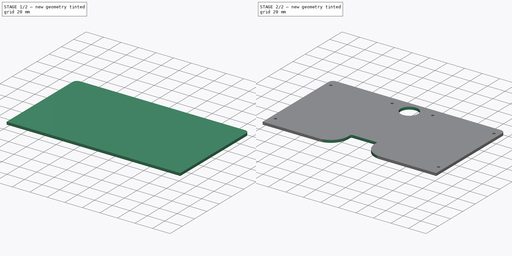
[diagram: build sequence overview — one tinted view per stage of 2, left to right]
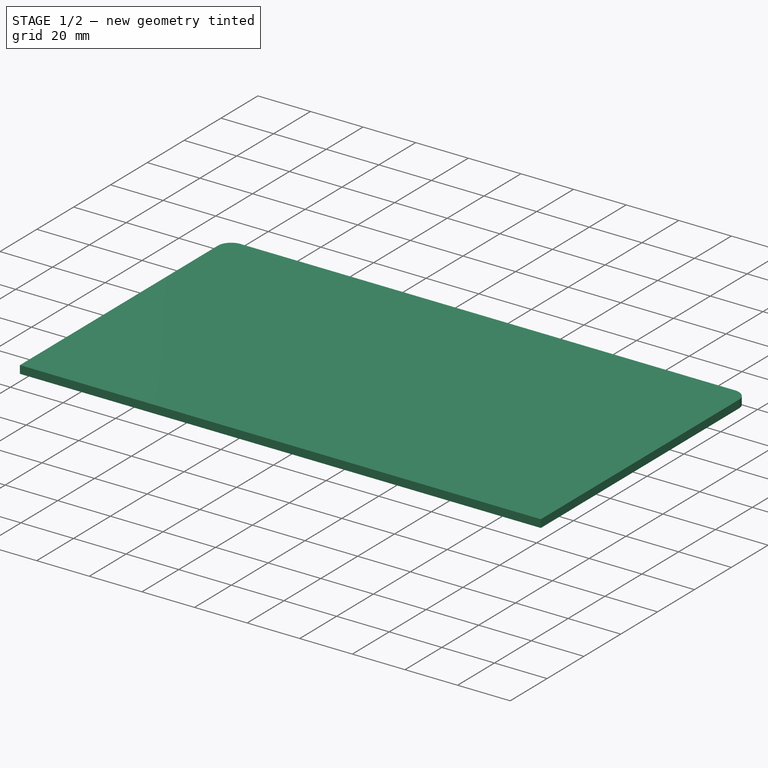
[diagram: stage 1 of 2 — iso view after this stage's code; geometry added in this stage tinted green]
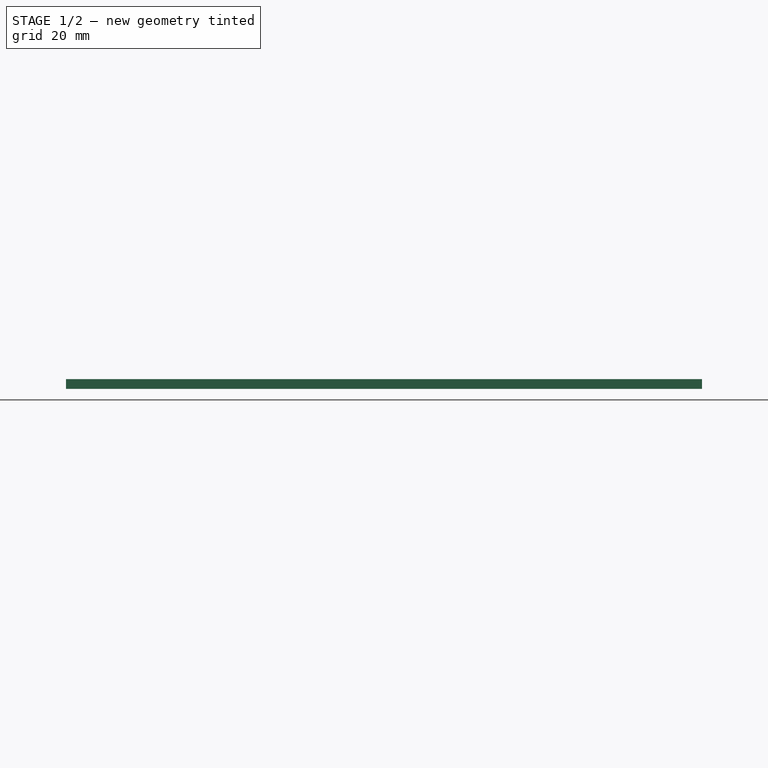
[diagram: stage 1 of 2 — front view after this stage's code; geometry added in this stage tinted green]
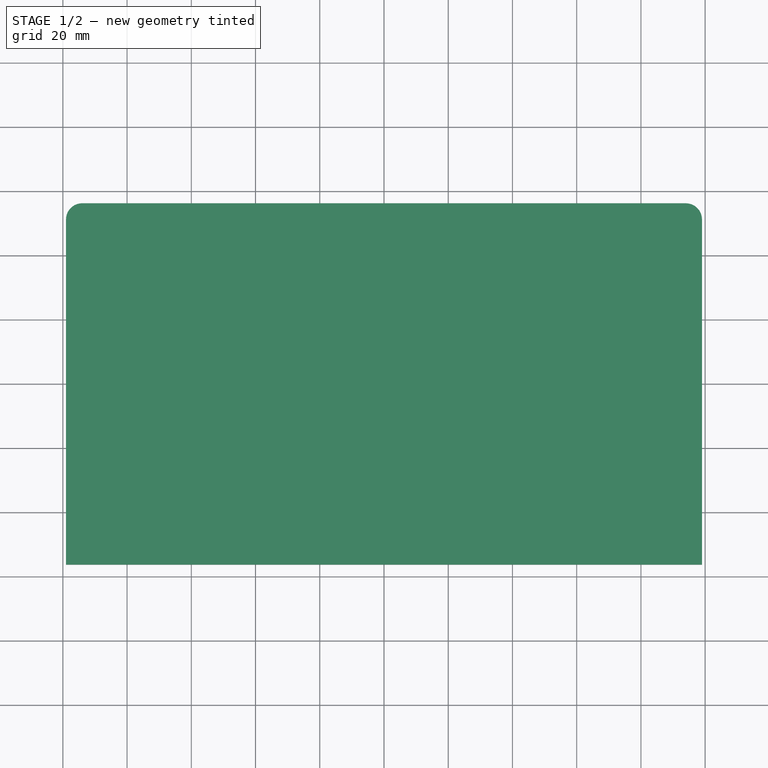
[diagram: stage 1 of 2 — top view after this stage's code; geometry added in this stage tinted green]
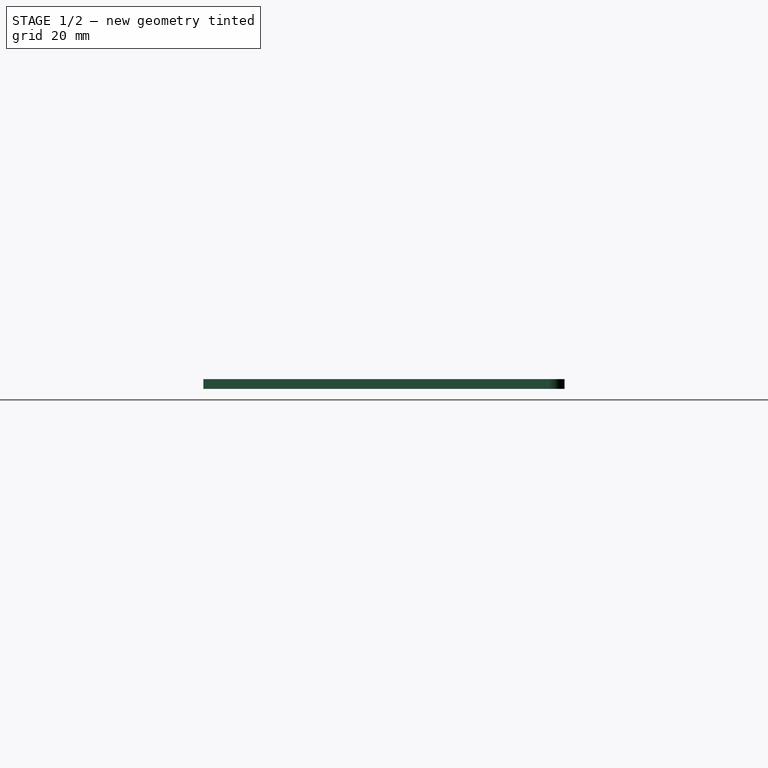
[diagram: stage 1 of 2 — right view after this stage's code; geometry added in this stage tinted green]
FCSTD DOCUMENT  (FreeCAD 0.18.4R)
Label: quimera_top_plate
License: All rights reserved
LicenseURL: http://en.wikipedia.org/wiki/All_rights_reserved
objects: Sketcher::SketchObject×2, PartDesign::Fillet×2, PartDesign::Pad×1, PartDesign::Pocket×1, PartDesign::Body×1
note: 9 computed .brp shape members not serialized (recipe doc carries the construction recipe); baked Part::Feature solids carry a one-line shape summary decoded from their .brp

FEATURE [Sketcher::SketchObject] Sketch
  MapMode = 5
  Support = -> [XY_Plane]
  sketch-geometry (4):
    g0: LineSegment StartX=-99 StartY=56.25 StartZ=0 EndX=99 EndY=56.25 EndZ=0
    g1: LineSegment StartX=99 StartY=56.25 StartZ=0 EndX=99 EndY=-56.25 EndZ=0
    g2: LineSegment StartX=99 StartY=-56.25 StartZ=0 EndX=-99 EndY=-56.25 EndZ=0
    g3: LineSegment StartX=-99 StartY=-56.25 StartZ=0 EndX=-99 EndY=56.25 EndZ=0
  constraints (11):
    c: Coincident(g0,g1)
    c: Coincident(g1,g2)
    c: Coincident(g2,g3)
    c: Coincident(g3,g0)
    c: Horizontal(g0)
    c: Horizontal(g2)
    c: Vertical(g1)
    c: Vertical(g3)
    c: Symmetric(g2,g0,g-1)
    c: DistanceY(g3,g3) = 112.5
    c: DistanceX(g2,g2) = 198
FEATURE [PartDesign::Pad] Pad
  Length = 3
  Length2 = 100
  Profile = -> Sketch
  Type = 0
FEATURE [PartDesign::Fillet] Fillet
  Base = -> Pad [Edge1,Edge2]
  BaseFeature = -> Pad
  Radius = 5
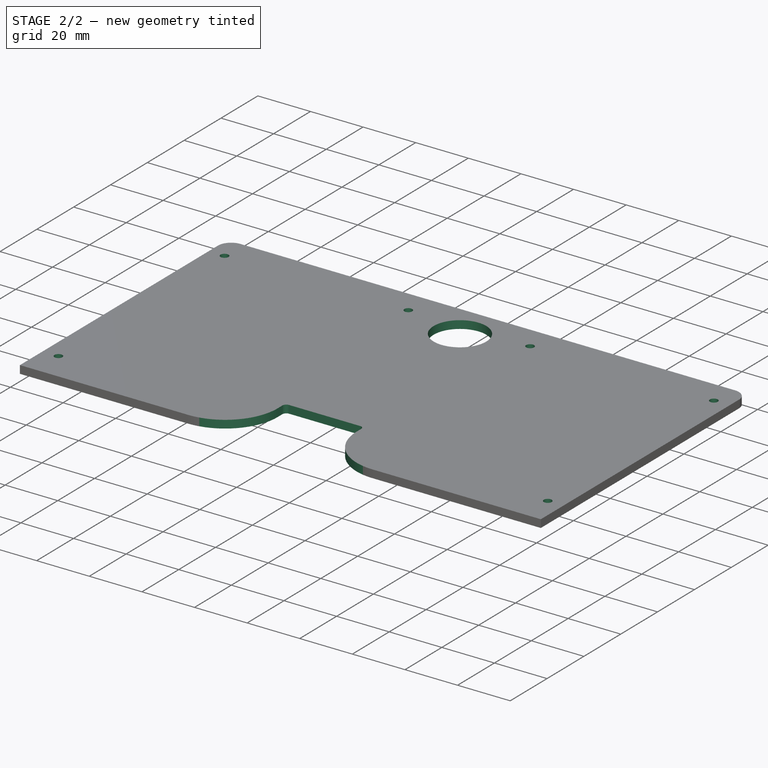
[diagram: stage 2 of 2 — iso view after this stage's code; geometry added in this stage tinted green]
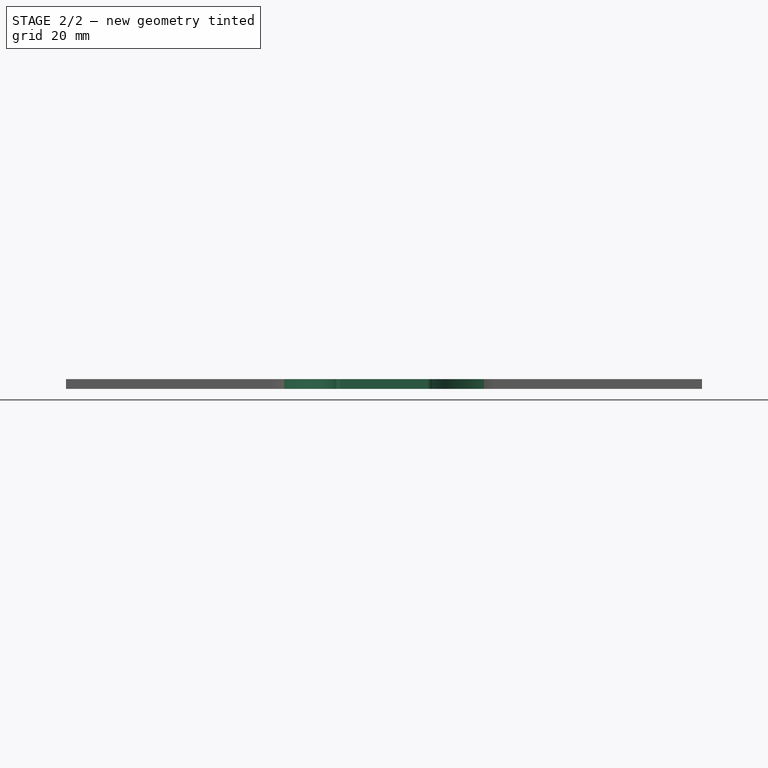
[diagram: stage 2 of 2 — front view after this stage's code; geometry added in this stage tinted green]
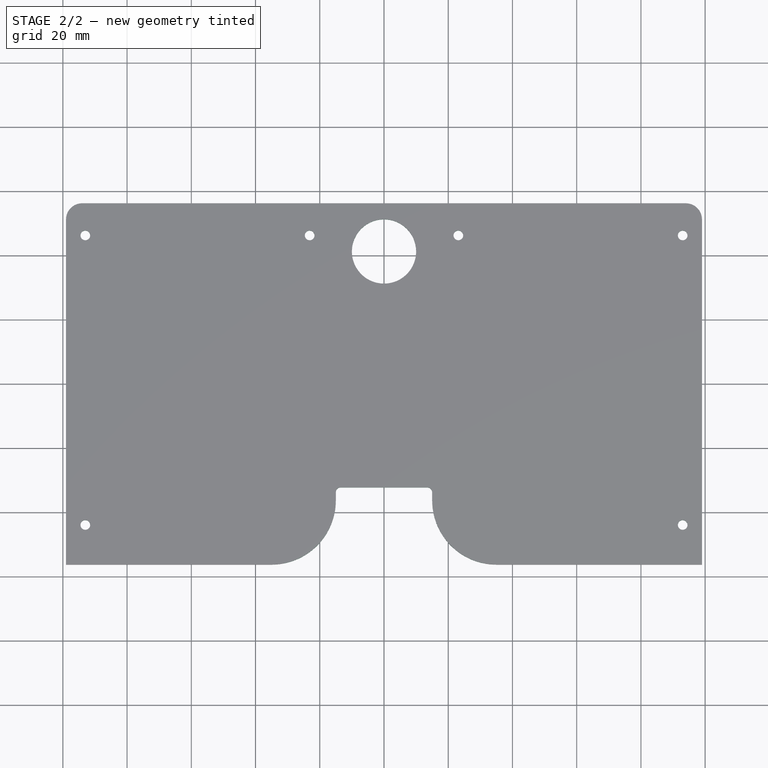
[diagram: stage 2 of 2 — top view after this stage's code; geometry added in this stage tinted green]
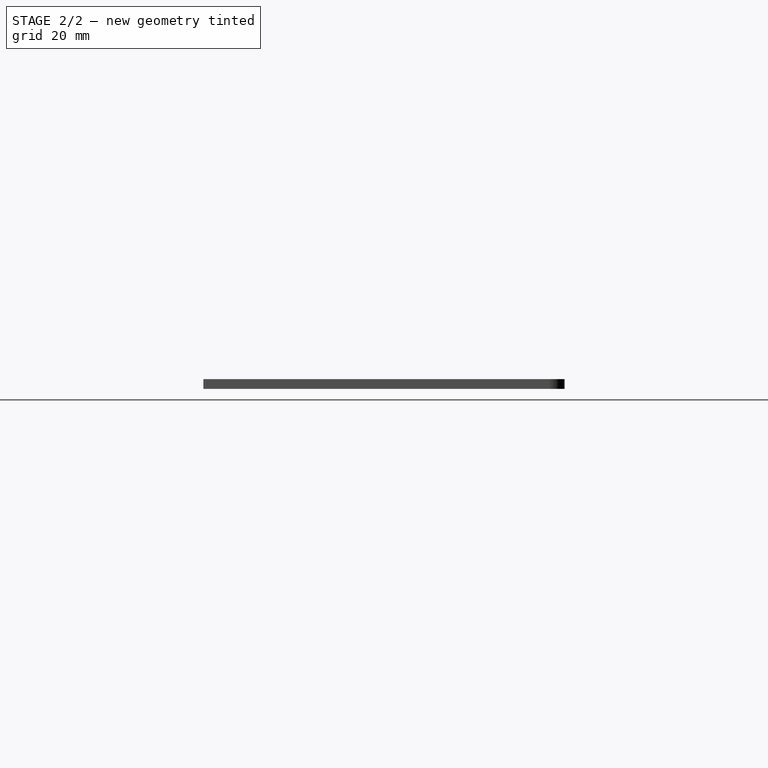
[diagram: stage 2 of 2 — right view after this stage's code; geometry added in this stage tinted green]
FEATURE [Sketcher::SketchObject] Sketch001
  MapMode = 5
  Placement = pos=(0,0,3) rot=(0,0,1;0rad)
  Support = -> [Fillet]
  sketch-geometry (13):
    g0: LineSegment StartX=-13.5 StartY=-32.25 StartZ=0 EndX=13.5 EndY=-32.25 EndZ=0
    g1: LineSegment StartX=15 StartY=-33.75 StartZ=0 EndX=15 EndY=-56.25 EndZ=0
    g2: LineSegment StartX=15 StartY=-56.25 StartZ=0 EndX=-15 EndY=-56.25 EndZ=0
    g3: LineSegment StartX=-15 StartY=-56.25 StartZ=0 EndX=-15 EndY=-33.75 EndZ=0
    g4: ArcOfCircle CenterX=-13.5 CenterY=-33.75 CenterZ=0 NormalX=0 NormalY=0 NormalZ=1 AngleXU=0 Radius=1.5 StartAngle=1.5708 EndAngle=3.14159
    g5: ArcOfCircle CenterX=13.5 CenterY=-33.75 CenterZ=0 NormalX=0 NormalY=0 NormalZ=1 AngleXU=0 Radius=1.5 StartAngle=1.5e-15 EndAngle=1.5708
    g6: Circle CenterX=-93 CenterY=46.25 CenterZ=0 NormalX=0 NormalY=0 NormalZ=1 AngleXU=0 Radius=1.5
    g7: Circle CenterX=-93 CenterY=-43.92 CenterZ=0 NormalX=0 NormalY=0 NormalZ=1 AngleXU=0 Radius=1.5
    g8: Circle CenterX=93 CenterY=46.25 CenterZ=0 NormalX=0 NormalY=0 NormalZ=1 AngleXU=0 Radius=1.5
    g9: Circle CenterX=93 CenterY=-43.92 CenterZ=0 NormalX=0 NormalY=0 NormalZ=1 AngleXU=0 Radius=1.5
    g10: Circle CenterX=-23.15 CenterY=46.25 CenterZ=0 NormalX=0 NormalY=0 NormalZ=1 AngleXU=0 Radius=1.5
    g11: Circle CenterX=23.15 CenterY=46.25 CenterZ=0 NormalX=0 NormalY=0 NormalZ=1 AngleXU=0 Radius=1.5
    g12: Circle CenterX=0 CenterY=41.25 CenterZ=0 NormalX=0 NormalY=0 NormalZ=1 AngleXU=0 Radius=10
  constraints (34):
    c: Coincident(g1,g2)
    c: Coincident(g2,g3)
    c: Horizontal(g0)
    c: Vertical(g1)
    c: Vertical(g3)
    c: Tangent(g0,g4) = 1.5708
    c: Tangent(g3,g4) = 1.5708
    c: Tangent(g0,g5) = 1.5708
    c: Tangent(g1,g5) = 1.5708
    c: Equal(g4,g5)
    c: Symmetric(g2,g1,g-2)
    c: DistanceX(g2,g2) = 30
    c: Radius(g4) = 1.5
    c: DistanceY(g2,g0) = 24
    c: DistanceY(g2) = -56.25
    c: Horizontal(g6,g10)
    c: Symmetric(g10,g11,g-2)
    c: Symmetric(g6,g8,g-2)
    c: Equal(g6,g7)
    c: Equal(g7,g10)
    c: Equal(g10,g11)
    c: Equal(g11,g9)
    c: Equal(g9,g8)
    c: Radius(g6) = 1.5
    c: DistanceX(g6,g8) = 186
    c: DistanceY(g9,g8) = 90.17
    c: Vertical(g8,g9)
    c: Vertical(g6,g7)
    c: DistanceX(g10,g11) = 46.3
    c: DistanceY(g6) = 46.25
    c: Horizontal(g7,g9)
    c: PointOnObject(g12,g-2)
    c: Radius(g12) = 10
    c: DistanceY(g12) = 41.25
FEATURE [PartDesign::Pocket] Pocket
  BaseFeature = -> Fillet
  Length = 5
  Length2 = 100
  Profile = -> Sketch001
  Type = 1
FEATURE [PartDesign::Fillet] Fillet001
  Base = -> Pocket [Edge44,Edge49]
  BaseFeature = -> Pocket
  Radius = 20
FEATURE [PartDesign::Body] Body
  Group = -> [Sketch,Pad,Fillet,Sketch001,Pocket,Fillet001]
  Origin = -> Origin
  Tip = -> Fillet001
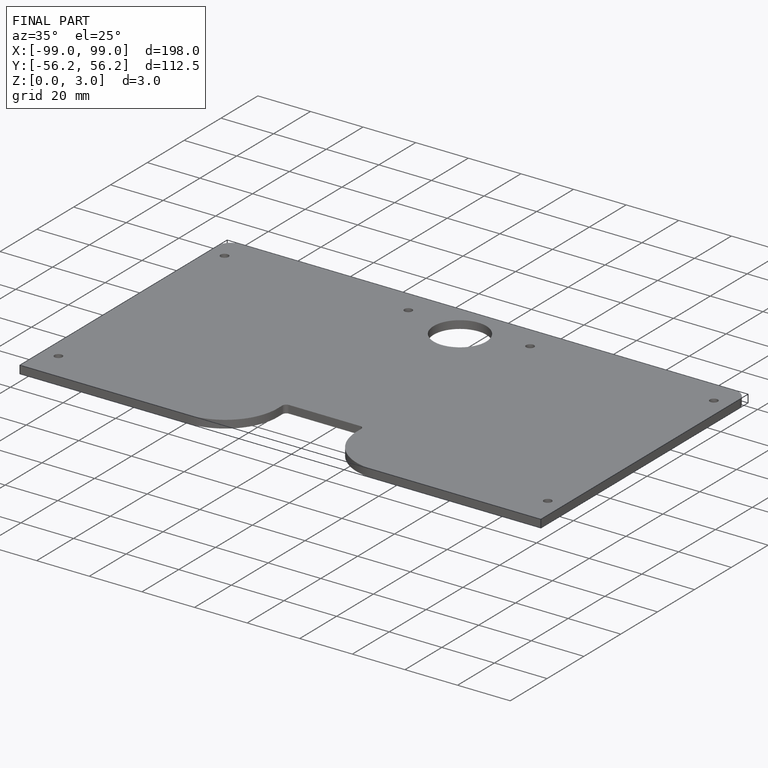
[diagram: finished part — iso view with bounding-box wireframe]
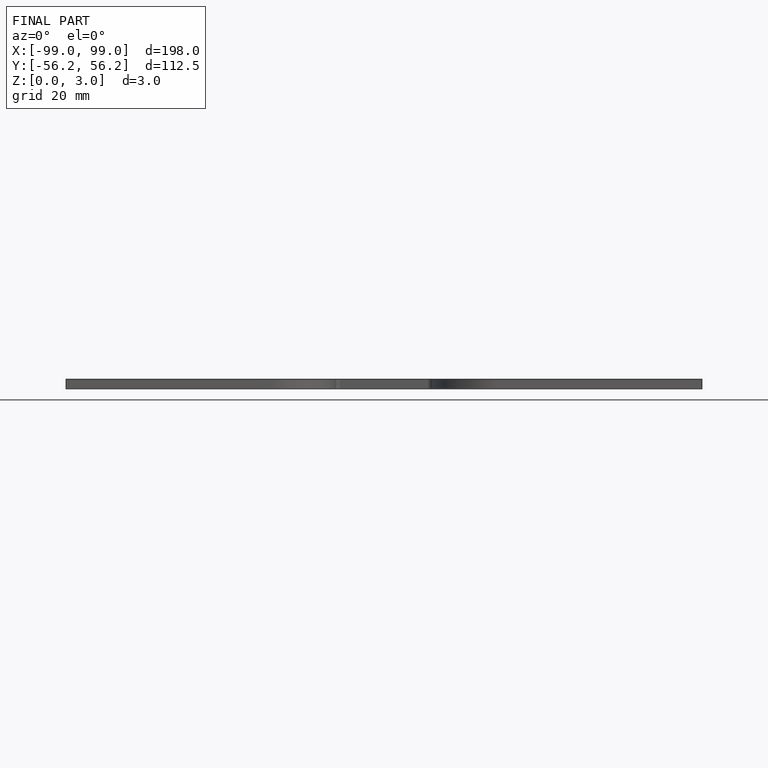
[diagram: finished part — front view with bounding-box wireframe]
